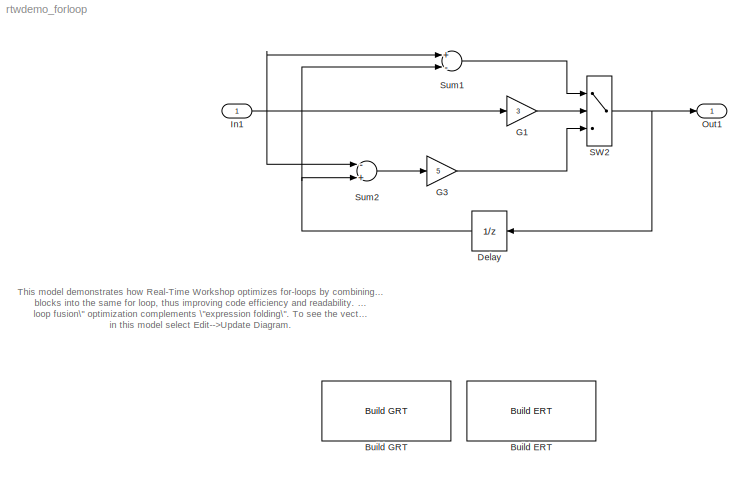
MODEL rtwdemo_forloop
KIND model
BLOCK [Reference] Build ERT  REF=rtwdemowidgets/Build ERT
  Ports = []
  ShowPortLabels = on
  SourceBlock = rtwdemowidgets/Build ERT
  attrib_overrides = {}
BLOCK [Reference] Build GRT  REF=rtwdemowidgets/Build GRT
  Ports = []
  ShowPortLabels = on
  SourceBlock = rtwdemowidgets/Build GRT
  attrib_overrides = {}
BLOCK [UnitDelay] Delay
BLOCK [Gain] G1
  Gain = 3
BLOCK [Gain] G3
  Gain = 5
BLOCK [Inport] In1
  IconDisplay = Port number
  LatchInput = off
  Port = 1
  PortDimensions = 10
BLOCK [Outport] Out1
  BusOutputAsStruct = off
  IconDisplay = Port number
BLOCK [Switch] SW2
  ZeroCross = off
BLOCK [Sum] Sum1
  Inputs = +-
  Ports = [2, 1]
BLOCK [Sum] Sum2
  Inputs = -+
  Ports = [2, 1]
ANNOTATION (root): This model demonstrates how Real-Time Workshop optimizes for-loops by combining multiple\nblocks into the same for loop, thus improving code efficiency and readability. The \"for-\nloop fusion\" optimization complements \"expression folding\". To see the vector widths\nin this model select Edit-->Update Diagram.
NET Delay:1 -> Sum1:2, Sum2:2
LINE G1:1 -> SW2:2
LINE G3:1 -> SW2:3
NET In1:1 -> G1:1, Sum1:1, Sum2:1
NET SW2:1 -> Delay:1, Out1:1
LINE Sum1:1 -> SW2:1
LINE Sum2:1 -> G3:1
note: NET lines group one-source signal fan-out (src -> all destinations, sorted); 1:1 wires keep LINE
